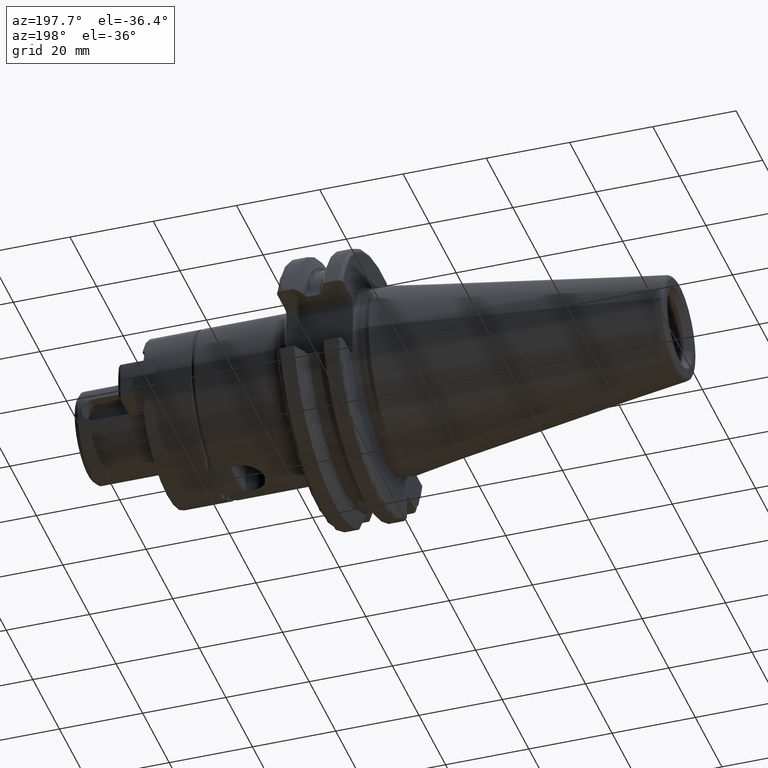
[diagram: clean part render]
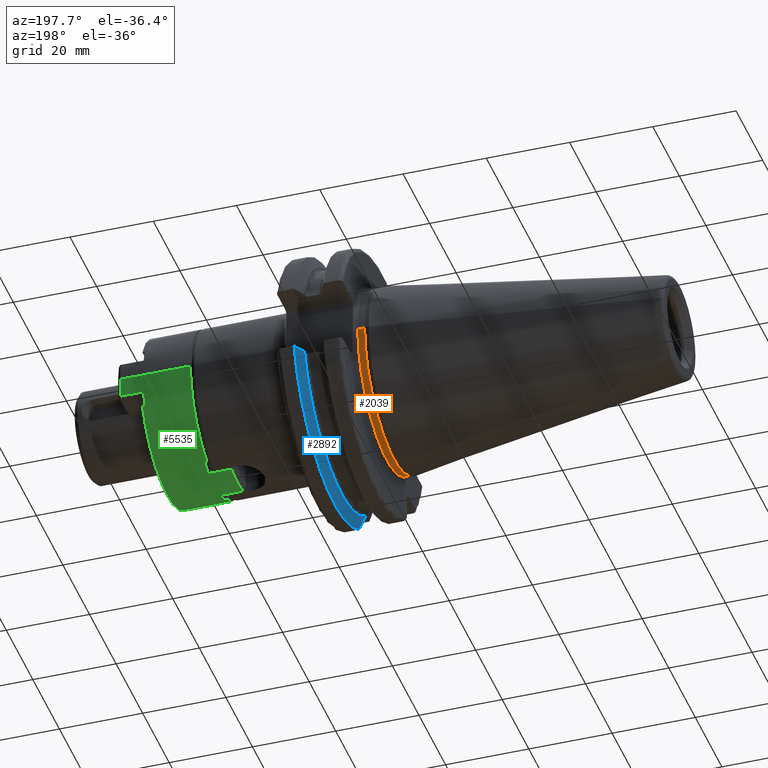
[diagram: same view with three faces highlighted in distinct colors, each labeled with its STEP entity id]
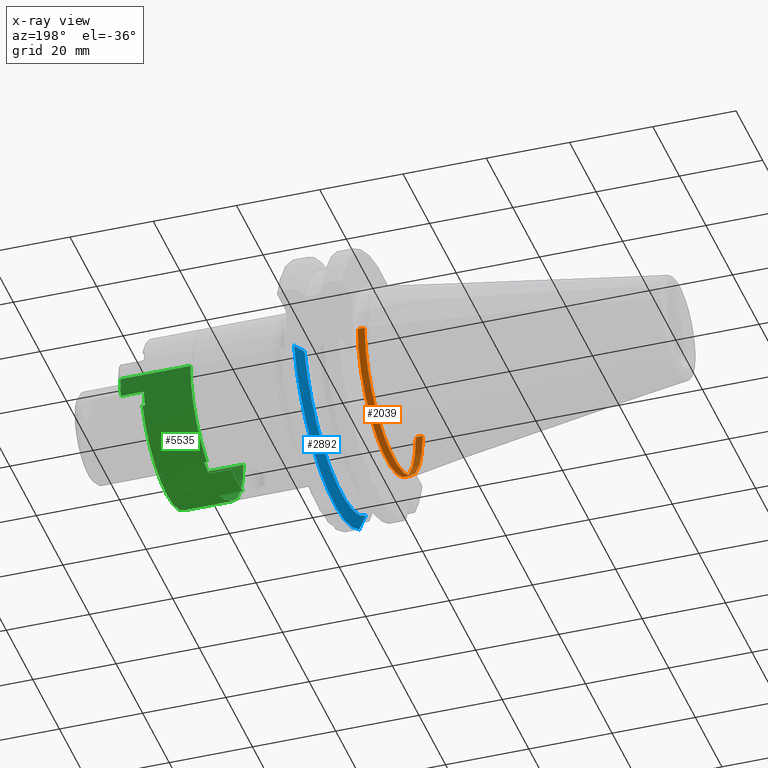
[diagram: x-ray of the same camera — body ghosted, the three highlighted faces saturated]
A machine part, auxiliary view with three faces highlighted in distinct colors.
The next image is the same camera in x-ray (body ghosted, the three faces saturated) — at least one of them is partly hidden behind the body in this view.
Their STEP definitions:

[orange] entity #2039 — the highlighted cylindrical surface (partial cylindrical patch) has radius 21.875 mm, axis along (1, 0, 0).
#68=CARTESIAN_POINT('',(5.5E-1,0.E0,0.E0));
#69=DIRECTION('',(-1.E0,0.E0,0.E0));
#70=DIRECTION('',(0.E0,1.E0,0.E0));
#71=AXIS2_PLACEMENT_3D('',#68,#69,#70);
#83=DIRECTION('',(-1.E0,0.E0,0.E0));
#84=VECTOR('',#83,1.65E0);
#85=CARTESIAN_POINT('',(2.2E0,2.1875E1,0.E0));
#86=LINE('',#85,#84);
#87=DIRECTION('',(-1.E0,0.E0,0.E0));
#88=VECTOR('',#87,1.65E0);
#89=CARTESIAN_POINT('',(2.2E0,-2.1875E1,0.E0));
#90=LINE('',#89,#88);
#91=CARTESIAN_POINT('',(2.2E0,0.E0,0.E0));
#92=DIRECTION('',(-1.E0,0.E0,0.E0));
#93=DIRECTION('',(0.E0,1.E0,0.E0));
#94=AXIS2_PLACEMENT_3D('',#91,#92,#93);
#1598=CARTESIAN_POINT('',(2.2E0,2.1875E1,0.E0));
#1599=CARTESIAN_POINT('',(5.5E-1,2.1875E1,0.E0));
#1600=VERTEX_POINT('',#1598);
#1601=VERTEX_POINT('',#1599);
#1603=CARTESIAN_POINT('',(2.2E0,-2.1875E1,0.E0));
#1605=VERTEX_POINT('',#1603);
#1606=CARTESIAN_POINT('',(5.5E-1,-2.1875E1,0.E0));
#1607=VERTEX_POINT('',#1606);
#2027=CARTESIAN_POINT('',(-7.2615E1,0.E0,0.E0));
#2028=DIRECTION('',(1.E0,0.E0,0.E0));
#2029=DIRECTION('',(0.E0,-1.E0,0.E0));
#2030=AXIS2_PLACEMENT_3D('',#2027,#2028,#2029);
#2031=CYLINDRICAL_SURFACE('',#2030,2.1875E1);
#2032=ORIENTED_EDGE('',*,*,#2017,.T.);
#2033=ORIENTED_EDGE('',*,*,#1994,.T.);
#2034=ORIENTED_EDGE('',*,*,#2021,.F.);
#2036=ORIENTED_EDGE('',*,*,#2035,.F.);
#2037=EDGE_LOOP('',(#2032,#2033,#2034,#2036));
#2038=FACE_OUTER_BOUND('',#2037,.F.);
#2039=ADVANCED_FACE('',(#2038),#2031,.T.);
#72=CIRCLE('',#71,2.1875E1);
#95=CIRCLE('',#94,2.1875E1);
#1994=EDGE_CURVE('',#1601,#1607,#72,.T.);
#2017=EDGE_CURVE('',#1600,#1601,#86,.T.);
#2021=EDGE_CURVE('',#1605,#1607,#90,.T.);
#2035=EDGE_CURVE('',#1600,#1605,#95,.T.);

[blue] entity #2892 — the highlighted conical surface has half-angle 60 deg.
#795=CARTESIAN_POINT('',(1.470405352042E1,0.E0,0.E0));
#796=DIRECTION('',(1.E0,0.E0,0.E0));
#797=DIRECTION('',(0.E0,-5.777253049980E-1,-8.162312613254E-1));
#798=AXIS2_PLACEMENT_3D('',#795,#796,#797);
#936=CARTESIAN_POINT('',(1.30875E1,2.780681820245E1,-8.1E0));
#937=CARTESIAN_POINT('',(1.326086175289E1,2.811956968242E1,-8.1E0));
#938=CARTESIAN_POINT('',(1.361176448515E1,2.875178670793E1,-8.1E0));
#939=CARTESIAN_POINT('',(1.415055493375E1,2.972014324708E1,-8.1E0));
#940=CARTESIAN_POINT('',(1.451816260441E1,3.037933474515E1,-8.1E0));
#941=CARTESIAN_POINT('',(1.470405352042E1,3.071231684927E1,-8.1E0));
#943=CARTESIAN_POINT('',(1.30875E1,0.E0,0.E0));
#944=DIRECTION('',(-1.E0,0.E0,0.E0));
#945=DIRECTION('',(0.E0,9.600957415706E-1,-2.796715341576E-1));
#946=AXIS2_PLACEMENT_3D('',#943,#944,#945);
#948=CARTESIAN_POINT('',(1.30875E1,-1.835E1,-2.240773613162E1));
#949=CARTESIAN_POINT('',(1.325213098463E1,-1.835E1,-2.277629848758E1));
#950=CARTESIAN_POINT('',(1.359130882027E1,-1.835E1,-2.352831190146E1));
#951=CARTESIAN_POINT('',(1.412957926498E1,-1.835E1,-2.469989032362E1));
#952=CARTESIAN_POINT('',(1.450914442104E1,-1.835E1,-2.551194640168E1));
#953=CARTESIAN_POINT('',(1.470405352042E1,-1.835E1,-2.592554543785E1));
#1696=CARTESIAN_POINT('',(1.30875E1,2.780681820245E1,-8.1E0));
#1698=VERTEX_POINT('',#1696);
#1710=CARTESIAN_POINT('',(1.30875E1,-1.835E1,-2.240773613162E1));
#1712=VERTEX_POINT('',#1710);
#1724=VERTEX_POINT('',#941);
#1814=VERTEX_POINT('',#953);
#2881=CARTESIAN_POINT('',(1.389577676021E1,0.E0,0.E0));
#2882=DIRECTION('',(1.E0,0.E0,0.E0));
#2883=DIRECTION('',(0.E0,-1.E0,0.E0));
#2884=AXIS2_PLACEMENT_3D('',#2881,#2882,#2883);
#2885=CONICAL_SURFACE('',#2884,3.036252358474E1,6.E1);
#2886=ORIENTED_EDGE('',*,*,#2397,.F.);
#2887=ORIENTED_EDGE('',*,*,#2597,.T.);
#2888=ORIENTED_EDGE('',*,*,#2720,.T.);
#2889=ORIENTED_EDGE('',*,*,#2759,.T.);
#2890=EDGE_LOOP('',(#2886,#2887,#2888,#2889));
#2891=FACE_OUTER_BOUND('',#2890,.F.);
#2892=ADVANCED_FACE('',(#2891),#2885,.T.);
#799=CIRCLE('',#798,3.17625E1);
#942=B_SPLINE_CURVE_WITH_KNOTS('',3,(#936,#937,#938,#939,#940,#941),
.UNSPECIFIED.,.F.,.F.,(4,1,1,4),(0.E0,3.333333333333E-1,6.666666666667E-1,1.E0),
.UNSPECIFIED.);
#947=CIRCLE('',#946,2.896254716948E1);
#954=B_SPLINE_CURVE_WITH_KNOTS('',3,(#948,#949,#950,#951,#952,#953),
.UNSPECIFIED.,.F.,.F.,(4,1,1,4),(0.E0,3.333333333333E-1,6.666666666667E-1,1.E0),
.UNSPECIFIED.);
#2397=EDGE_CURVE('',#1698,#1724,#942,.T.);
#2597=EDGE_CURVE('',#1698,#1712,#947,.T.);
#2720=EDGE_CURVE('',#1712,#1814,#954,.T.);
#2759=EDGE_CURVE('',#1814,#1724,#799,.T.);

[green] entity #5535 — the highlighted cylindrical surface (partial cylindrical patch) has radius 20 mm, axis along (-1, 0, 0).
#3975=DIRECTION('',(6.066739236794E-12,1.E0,1.516152545145E-11));
#3976=VECTOR('',#3975,1.686250000010E1);
#3977=CARTESIAN_POINT('',(1.999999999990E1,-4.862500000102E0,
-2.556587736330E-10));
#3978=LINE('',#3977,#3976);
#4216=DIRECTION('',(3.707179490922E-14,1.E0,0.E0));
#4217=VECTOR('',#4216,5.4625E0);
#4218=CARTESIAN_POINT('',(-1.950260702014E1,-4.8625E0,4.432642487047E0));
#4219=LINE('',#4218,#4217);
#4220=CARTESIAN_POINT('',(0.E0,-4.8625E0,0.E0));
#4221=DIRECTION('',(0.E0,-1.E0,0.E0));
#4222=DIRECTION('',(-9.751303510070E-1,0.E0,2.216321243523E-1));
#4223=AXIS2_PLACEMENT_3D('',#4220,#4221,#4222);
#4225=DIRECTION('',(-6.056415561760E-12,1.E0,-1.206576220864E-11));
#4226=VECTOR('',#4225,1.686250000010E1);
#4227=CARTESIAN_POINT('',(-1.999999999990E1,-4.862500000102E0,
2.034572823819E-10));
#4228=LINE('',#4227,#4226);
#4229=CARTESIAN_POINT('',(0.E0,1.2E1,0.E0));
#4230=DIRECTION('',(0.E0,1.E0,0.E0));
#4231=DIRECTION('',(-1.E0,0.E0,0.E0));
#4232=AXIS2_PLACEMENT_3D('',#4229,#4230,#4231);
#4234=DIRECTION('',(0.E0,1.E0,0.E0));
#4235=VECTOR('',#4234,6.E-1);
#4236=CARTESIAN_POINT('',(-7.5775E0,1.14E1,1.850895712216E1));
#4237=LINE('',#4236,#4235);
#4238=DIRECTION('',(-3.616888488346E-9,-1.E0,1.591347887545E-8));
#4239=VECTOR('',#4238,5.462499821711E0);
#4240=CARTESIAN_POINT('',(-4.432642467289E0,1.686249982171E1,1.950260693321E1));
#4241=LINE('',#4240,#4239);
#4242=DIRECTION('',(3.528503646515E-9,9.999999999915E-1,-4.134261028728E-6));
#4243=VECTOR('',#4242,5.462523214265E0);
#4244=CARTESIAN_POINT('',(4.432642487047E0,1.14E1,1.950260702014E1));
#4245=LINE('',#4244,#4243);
#4246=DIRECTION('',(0.E0,1.E0,0.E0));
#4247=VECTOR('',#4246,6.E-1);
#4248=CARTESIAN_POINT('',(7.5775E0,1.14E1,1.850895712216E1));
#4249=LINE('',#4248,#4247);
#4250=CARTESIAN_POINT('',(0.E0,1.2E1,0.E0));
#4251=DIRECTION('',(0.E0,1.E0,0.E0));
#4252=DIRECTION('',(3.78875E-1,0.E0,9.254478561081E-1));
#4253=AXIS2_PLACEMENT_3D('',#4250,#4251,#4252);
#4255=CARTESIAN_POINT('',(0.E0,-4.8625E0,0.E0));
#4256=DIRECTION('',(0.E0,-1.E0,0.E0));
#4257=DIRECTION('',(1.E0,0.E0,0.E0));
#4258=AXIS2_PLACEMENT_3D('',#4255,#4256,#4257);
#4260=DIRECTION('',(0.E0,-1.E0,0.E0));
#4261=VECTOR('',#4260,5.4625E0);
#4262=CARTESIAN_POINT('',(1.950260702014E1,6.E-1,4.432642487047E0));
#4263=LINE('',#4262,#4261);
#4264=DIRECTION('',(0.E0,1.E0,0.E0));
#4265=VECTOR('',#4264,6.E-1);
#4266=CARTESIAN_POINT('',(1.850895712216E1,0.E0,7.5775E0));
#4267=LINE('',#4266,#4265);
#4268=CARTESIAN_POINT('',(0.E0,0.E0,0.E0));
#4269=DIRECTION('',(0.E0,-1.E0,0.E0));
#4270=DIRECTION('',(9.254478561081E-1,0.E0,3.78875E-1));
#4271=AXIS2_PLACEMENT_3D('',#4268,#4269,#4270);
#4273=DIRECTION('',(0.E0,1.E0,0.E0));
#4274=VECTOR('',#4273,6.E-1);
#4275=CARTESIAN_POINT('',(-1.850895712216E1,0.E0,7.5775E0));
#4276=LINE('',#4275,#4274);
#4458=CARTESIAN_POINT('',(0.E0,1.14E1,0.E0));
#4459=DIRECTION('',(0.E0,-1.E0,0.E0));
#4460=DIRECTION('',(3.78875E-1,0.E0,9.254478561081E-1));
#4461=AXIS2_PLACEMENT_3D('',#4458,#4459,#4460);
#4604=CARTESIAN_POINT('',(0.E0,1.14E1,0.E0));
#4605=DIRECTION('',(0.E0,-1.E0,0.E0));
#4606=DIRECTION('',(-2.216321243523E-1,0.E0,9.751303510070E-1));
#4607=AXIS2_PLACEMENT_3D('',#4604,#4605,#4606);
#4700=CARTESIAN_POINT('',(8.701610089775E-6,1.686250064222E1,
-3.400968973999E-5));
#4701=DIRECTION('',(0.E0,-1.E0,0.E0));
#4702=DIRECTION('',(2.216313431354E-1,0.E0,9.751305285653E-1));
#4703=AXIS2_PLACEMENT_3D('',#4700,#4701,#4702);
#4817=CARTESIAN_POINT('',(0.E0,6.E-1,0.E0));
#4818=DIRECTION('',(0.E0,1.E0,0.E0));
#4819=DIRECTION('',(9.254478561081E-1,0.E0,3.78875E-1));
#4820=AXIS2_PLACEMENT_3D('',#4817,#4818,#4819);
#4835=CARTESIAN_POINT('',(0.E0,6.E-1,0.E0));
#4836=DIRECTION('',(0.E0,1.E0,0.E0));
#4837=DIRECTION('',(-9.751303510070E-1,0.E0,2.216321243523E-1));
#4838=AXIS2_PLACEMENT_3D('',#4835,#4836,#4837);
#4883=CARTESIAN_POINT('',(2.E1,1.2E1,0.E0));
#4885=VERTEX_POINT('',#4883);
#4888=CARTESIAN_POINT('',(-2.E1,1.2E1,0.E0));
#4890=VERTEX_POINT('',#4888);
#4891=CARTESIAN_POINT('',(7.5775E0,1.2E1,1.850895712216E1));
#4892=VERTEX_POINT('',#4891);
#4893=CARTESIAN_POINT('',(-7.5775E0,1.2E1,1.850895712216E1));
#4894=VERTEX_POINT('',#4893);
#4919=CARTESIAN_POINT('',(7.5775E0,1.14E1,1.850895712216E1));
#4920=VERTEX_POINT('',#4919);
#4921=CARTESIAN_POINT('',(-7.5775E0,1.14E1,1.850895712216E1));
#4922=VERTEX_POINT('',#4921);
#4931=CARTESIAN_POINT('',(-1.850895712216E1,6.E-1,7.5775E0));
#4933=VERTEX_POINT('',#4931);
#4936=CARTESIAN_POINT('',(1.850895712216E1,6.E-1,7.5775E0));
#4938=VERTEX_POINT('',#4936);
#4939=CARTESIAN_POINT('',(-1.850895712216E1,0.E0,7.5775E0));
#4941=VERTEX_POINT('',#4939);
#4944=CARTESIAN_POINT('',(1.850895712216E1,0.E0,7.5775E0));
#4946=VERTEX_POINT('',#4944);
#4991=CARTESIAN_POINT('',(4.432643081024E0,1.686250064222E1,1.950260963351E1));
#4992=CARTESIAN_POINT('',(-4.432642226167E0,1.686250064222E1,1.950260587233E1));
#4993=VERTEX_POINT('',#4991);
#4994=VERTEX_POINT('',#4992);
#5031=CARTESIAN_POINT('',(4.432642487047E0,1.14E1,1.950260702014E1));
#5032=VERTEX_POINT('',#5031);
#5041=CARTESIAN_POINT('',(-4.432642487047E0,1.14E1,1.950260702014E1));
#5042=VERTEX_POINT('',#5041);
#5056=CARTESIAN_POINT('',(-1.950260702014E1,-4.8625E0,4.432642487047E0));
#5057=CARTESIAN_POINT('',(-1.950260702014E1,6.E-1,4.432642487047E0));
#5058=VERTEX_POINT('',#5056);
#5059=VERTEX_POINT('',#5057);
#5066=CARTESIAN_POINT('',(-2.E1,-4.8625E0,0.E0));
#5068=VERTEX_POINT('',#5066);
#5090=CARTESIAN_POINT('',(1.950260702014E1,6.E-1,4.432642487047E0));
#5091=CARTESIAN_POINT('',(1.950260702014E1,-4.8625E0,4.432642487047E0));
#5092=VERTEX_POINT('',#5090);
#5093=VERTEX_POINT('',#5091);
#5096=CARTESIAN_POINT('',(2.E1,-4.8625E0,0.E0));
#5097=VERTEX_POINT('',#5096);
#5492=CARTESIAN_POINT('',(0.E0,-5.5625E0,0.E0));
#5493=DIRECTION('',(0.E0,1.E0,0.E0));
#5494=DIRECTION('',(1.E0,0.E0,0.E0));
#5495=AXIS2_PLACEMENT_3D('',#5492,#5493,#5494);
#5496=CYLINDRICAL_SURFACE('',#5495,2.E1);
#5497=ORIENTED_EDGE('',*,*,#5485,.F.);
#5498=ORIENTED_EDGE('',*,*,#5204,.T.);
#5499=ORIENTED_EDGE('',*,*,#5259,.T.);
#5501=ORIENTED_EDGE('',*,*,#5500,.T.);
#5503=ORIENTED_EDGE('',*,*,#5502,.F.);
#5505=ORIENTED_EDGE('',*,*,#5504,.F.);
#5507=ORIENTED_EDGE('',*,*,#5506,.F.);
#5509=ORIENTED_EDGE('',*,*,#5508,.F.);
#5511=ORIENTED_EDGE('',*,*,#5510,.F.);
#5513=ORIENTED_EDGE('',*,*,#5512,.F.);
#5515=ORIENTED_EDGE('',*,*,#5514,.T.);
#5517=ORIENTED_EDGE('',*,*,#5516,.T.);
#5518=ORIENTED_EDGE('',*,*,#5239,.F.);
#5520=ORIENTED_EDGE('',*,*,#5519,.T.);
#5522=ORIENTED_EDGE('',*,*,#5521,.F.);
#5524=ORIENTED_EDGE('',*,*,#5523,.F.);
#5526=ORIENTED_EDGE('',*,*,#5525,.F.);
#5528=ORIENTED_EDGE('',*,*,#5527,.T.);
#5530=ORIENTED_EDGE('',*,*,#5529,.T.);
#5532=ORIENTED_EDGE('',*,*,#5531,.F.);
#5533=EDGE_LOOP('',(#5497,#5498,#5499,#5501,#5503,#5505,#5507,#5509,#5511,#5513,
#5515,#5517,#5518,#5520,#5522,#5524,#5526,#5528,#5530,#5532));
#5534=FACE_OUTER_BOUND('',#5533,.F.);
#5535=ADVANCED_FACE('',(#5534),#5496,.T.);
#4224=CIRCLE('',#4223,2.E1);
#4233=CIRCLE('',#4232,2.E1);
#4254=CIRCLE('',#4253,2.E1);
#4259=CIRCLE('',#4258,2.E1);
#4272=CIRCLE('',#4271,2.E1);
#4462=CIRCLE('',#4461,2.E1);
#4608=CIRCLE('',#4607,2.E1);
#4704=CIRCLE('',#4703,2.000003391535E1);
#4821=CIRCLE('',#4820,2.E1);
#4839=CIRCLE('',#4838,2.E1);
#5204=EDGE_CURVE('',#5058,#5068,#4224,.T.);
#5239=EDGE_CURVE('',#5097,#4885,#3978,.T.);
#5259=EDGE_CURVE('',#5068,#4890,#4228,.T.);
#5485=EDGE_CURVE('',#5058,#5059,#4219,.T.);
#5500=EDGE_CURVE('',#4890,#4894,#4233,.T.);
#5502=EDGE_CURVE('',#4922,#4894,#4237,.T.);
#5504=EDGE_CURVE('',#5042,#4922,#4608,.T.);
#5506=EDGE_CURVE('',#4994,#5042,#4241,.T.);
#5508=EDGE_CURVE('',#4993,#4994,#4704,.T.);
#5510=EDGE_CURVE('',#5032,#4993,#4245,.T.);
#5512=EDGE_CURVE('',#4920,#5032,#4462,.T.);
#5514=EDGE_CURVE('',#4920,#4892,#4249,.T.);
#5516=EDGE_CURVE('',#4892,#4885,#4254,.T.);
#5519=EDGE_CURVE('',#5097,#5093,#4259,.T.);
#5521=EDGE_CURVE('',#5092,#5093,#4263,.T.);
#5523=EDGE_CURVE('',#4938,#5092,#4821,.T.);
#5525=EDGE_CURVE('',#4946,#4938,#4267,.T.);
#5527=EDGE_CURVE('',#4946,#4941,#4272,.T.);
#5529=EDGE_CURVE('',#4941,#4933,#4276,.T.);
#5531=EDGE_CURVE('',#5059,#4933,#4839,.T.);